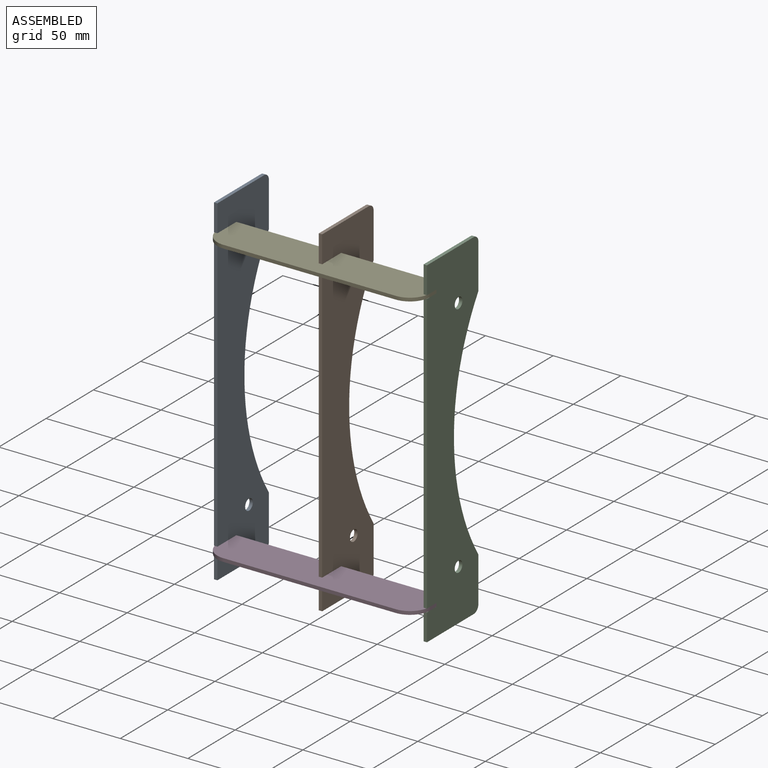
[diagram: assembled view]
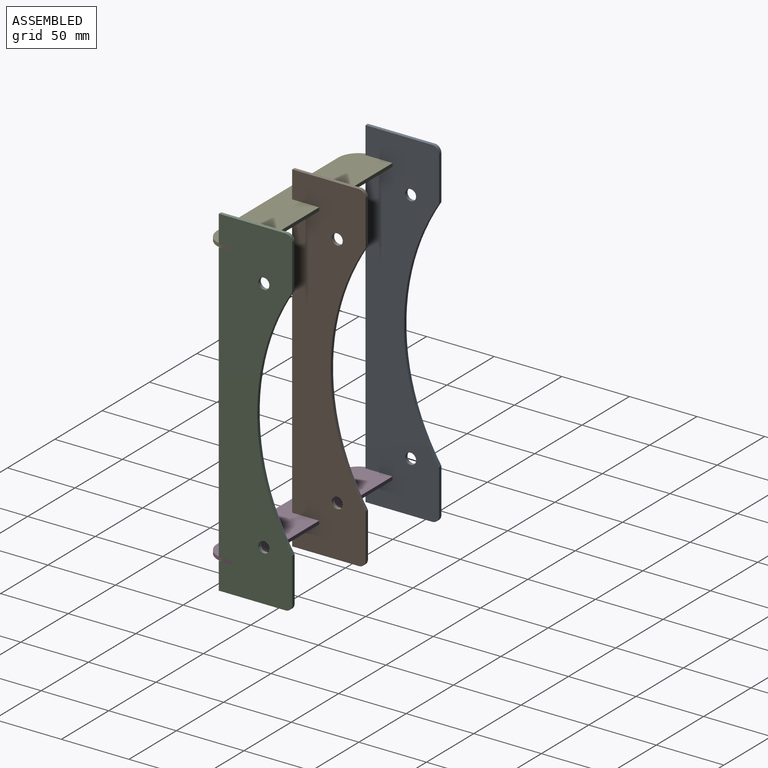
[diagram: assembled view, second angle]
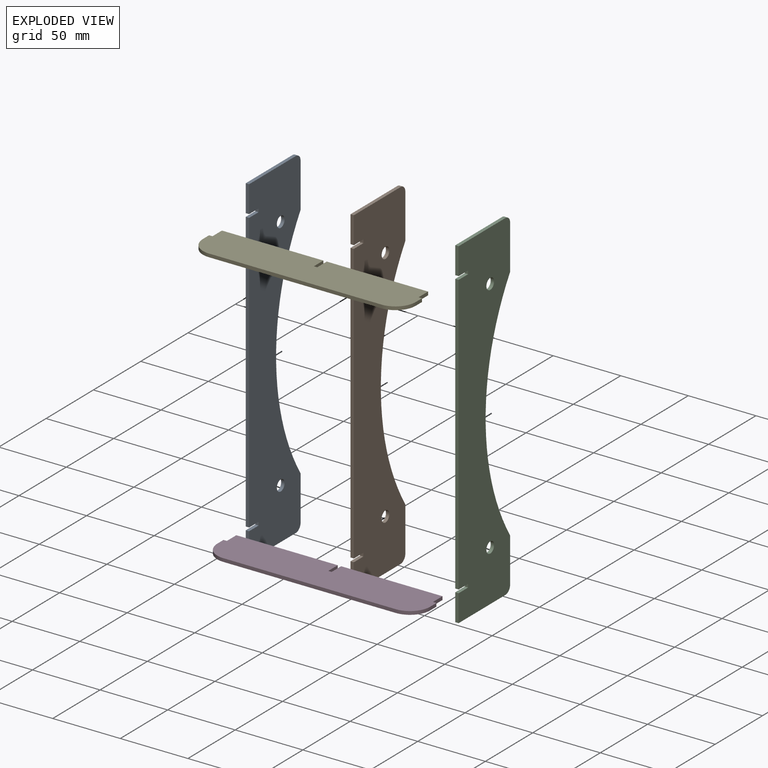
[diagram: exploded view]
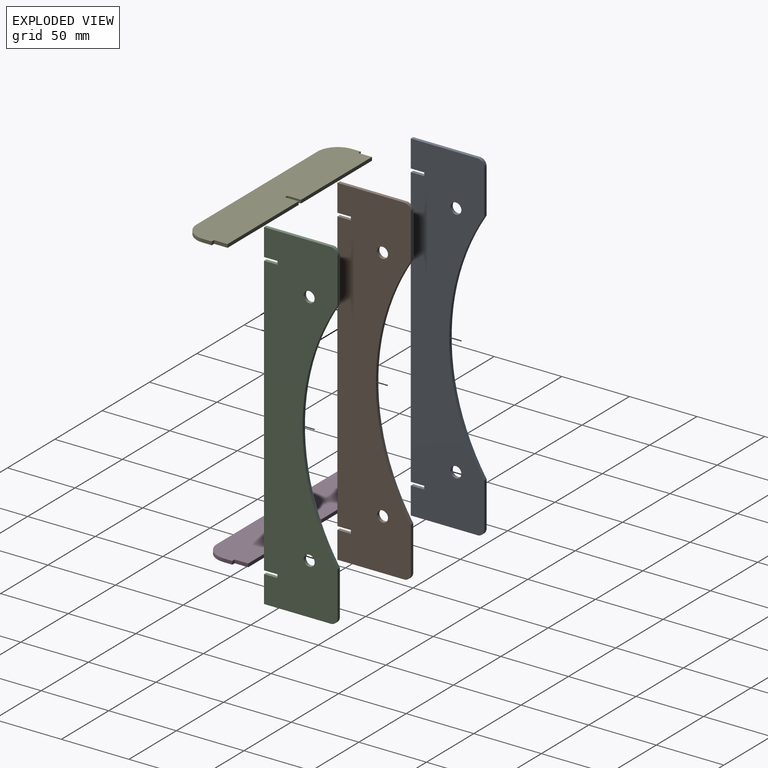
[diagram: exploded view, second angle]
FCSTD DOCUMENT  (FreeCAD 1.0R39319 (Git))
Label: Lasercut
License: All rights reserved
LicenseURL: https://en.wikipedia.org/wiki/All_rights_reserved
objects: App::FeaturePython×7, App::Link×5, Sketcher::SketchObject×3, PartDesign::Body×3, Measure::MeasureDistance×3, PartDesign::Pad×2, Part::Feature×1, PartDesign::FeatureBase×1, Spreadsheet::Sheet×1, PartDesign::SubShapeBinder×1, Assembly::JointGroup×1, Assembly::AssemblyObject×1, App::DocumentObjectGroup×1
note: 19 computed .brp shape members not serialized (recipe doc carries the construction recipe); baked Part::Feature solids carry a one-line shape summary decoded from their .brp

FEATURE [Part::Feature] Part__Feature  label="SpoolHolder"
  shape: bbox 163 x 40.87 x 240 mm, 451 faces (baked)
FEATURE [PartDesign::FeatureBase] BaseFeature
  BaseFeature = -> Part__Feature
  Suppressed = false
FEATURE [Sketcher::SketchObject] Sketch
  ArcFitTolerance = 1e-06
  AttachmentSupport = -> [YZ_Plane]
  ExternalGeometry = -> [BaseFeature]
  FullyConstrained = true
  MakeInternals = false
  MapMode = 5
  Placement = pos=(0,0,0) rot=(0.57735,0.57735,0.57735;2.0944rad)
FEATURE [PartDesign::Body] Body001
  AllowCompound = false
  BaseFeature = -> Part__Feature
  Group = -> [BaseFeature,Sketch]
  Origin = -> Origin001
  Tip = -> BaseFeature
FEATURE [Sketcher::SketchObject] Sketch001
  ArcFitTolerance = 1e-06
  AttachmentSupport = -> [YZ_Plane]
  ExternalGeometry = -> [BaseFeature]
  FullyConstrained = true
  MakeInternals = false
  MapMode = 5
  Placement = pos=(0,0,0) rot=(0.57735,0.57735,0.57735;2.0944rad)
  expr: Constraints[52] = <<config>>.dist
  expr: Constraints[55] = <<config>>.depth + <<config>>.clearance
  expr: Constraints[56] = <<config>>.thickness + <<config>>.clearance
  sketch-geometry (34):
    g0: Circle CenterX=44.8725 CenterY=88.1275 CenterZ=0 NormalX=0 NormalY=0 NormalZ=1 AngleXU=0 Radius=4.05
    g1: Circle CenterX=44.8725 CenterY=-88.1275 CenterZ=0 NormalX=0 NormalY=0 NormalZ=1 AngleXU=0 Radius=4.05
    g2: LineSegment [constr] StartX=50.8725 StartY=-126 StartZ=0 EndX=50.8725 EndY=120 EndZ=0
    g3: LineSegment [constr] StartX=50.8725 StartY=120 StartZ=0 EndX=11.5 EndY=120 EndZ=0
    g4: LineSegment StartX=50.8725 StartY=-126 StartZ=0 EndX=11.5 EndY=-126 EndZ=0
    g5: LineSegment [constr] StartX=50.8725 StartY=120 StartZ=0 EndX=65.8725 EndY=120 EndZ=0
    g6: LineSegment StartX=60.8725 StartY=-126 StartZ=0 EndX=50.8725 EndY=-126 EndZ=0
    g7: LineSegment StartX=65.8725 StartY=120 StartZ=0 EndX=65.8725 EndY=88.1275 EndZ=0
    g8: LineSegment [constr] StartX=65.8725 StartY=88.1275 StartZ=0 EndX=65.8725 EndY=-88.1275 EndZ=0
    g9: ArcOfCircle CenterX=203.027 CenterY=2.02e-14 CenterZ=0 NormalX=0 NormalY=0 NormalZ=1 AngleXU=0 Radius=163.027 StartAngle=2.57048 EndAngle=3.71271
    g10: LineSegment StartX=65.8725 StartY=-88.1275 StartZ=0 EndX=65.8725 EndY=-120 EndZ=0
    g11: LineSegment StartX=65.8725 StartY=-120 StartZ=0 EndX=65.8725 EndY=-121 EndZ=0
    g12: LineSegment [constr] StartX=11.5 StartY=-120 StartZ=0 EndX=65.8725 EndY=-120 EndZ=0
    g13: LineSegment [constr] StartX=65.8725 StartY=88.1275 StartZ=0 EndX=44.8725 EndY=88.1275 EndZ=0
    g14: GeomPoint [constr] X=40 Y=0 Z=0
    g15: GeomPoint [constr] X=65.8725 Y=120 Z=0
    g16: ArcOfCircle CenterX=60.8725 CenterY=-121 CenterZ=0 NormalX=0 NormalY=0 NormalZ=1 AngleXU=0 Radius=5 StartAngle=4.71239 EndAngle=6.28319
    g17: GeomPoint [constr] X=65.8725 Y=-126 Z=0
    g18: LineSegment StartX=11.5 StartY=106 StartZ=0 EndX=21.5 EndY=106 EndZ=0
    g19: LineSegment StartX=21.5 StartY=106 StartZ=0 EndX=21.5 EndY=103.5 EndZ=0
    g20: LineSegment StartX=21.5 StartY=103.5 StartZ=0 EndX=11.5 EndY=103.5 EndZ=0
    g21: LineSegment StartX=11.5 StartY=-103.5 StartZ=0 EndX=21.5 EndY=-103.5 EndZ=0
    g22: LineSegment StartX=21.5 StartY=-103.5 StartZ=0 EndX=21.5 EndY=-106 EndZ=0
    g23: LineSegment StartX=21.5 StartY=-106 StartZ=0 EndX=11.5 EndY=-106 EndZ=0
    g24: LineSegment StartX=11.5 StartY=120 StartZ=0 EndX=11.5 EndY=106 EndZ=0
    g25: LineSegment [constr] StartX=11.5 StartY=106 StartZ=0 EndX=11.5 EndY=103.5 EndZ=0
    g26: LineSegment StartX=11.5 StartY=103.5 StartZ=0 EndX=11.5 EndY=-103.5 EndZ=0
    g27: LineSegment [constr] StartX=11.5 StartY=-103.5 StartZ=0 EndX=11.5 EndY=-106 EndZ=0
    g28: LineSegment StartX=11.5 StartY=-106 StartZ=0 EndX=11.5 EndY=-126 EndZ=0
    g29: LineSegment StartX=11.5 StartY=120 StartZ=0 EndX=11.5 EndY=126 EndZ=0
    g30: LineSegment StartX=11.5 StartY=126 StartZ=0 EndX=60.8725 EndY=126 EndZ=0
    g31: LineSegment StartX=65.8725 StartY=121 StartZ=0 EndX=65.8725 EndY=120 EndZ=0
    g32: ArcOfCircle CenterX=60.8725 CenterY=121 CenterZ=0 NormalX=0 NormalY=0 NormalZ=1 AngleXU=0 Radius=5 StartAngle=8e-16 EndAngle=1.5708
    g33: GeomPoint [constr] X=65.8725 Y=126 Z=0
  constraints (88):
    c: Coincident(g0,g-3)
    c: PointOnObject(g-3,g0)
    c: Coincident(g1,g-4)
    c: PointOnObject(g-4,g1)
    c: Coincident(g2,g3)
    c: Coincident(g3,g24)
    c: Vertical(g2)
    c: Horizontal(g3)
    c: Coincident(g24,g-7)
    c: Horizontal(g4)
    c: PointOnObject(g-5,g2)
    c: Coincident(g2,g4)
    c: Coincident(g28,g4)
    c: DistanceY(g28,g-8) = 6
    c: Coincident(g2,g5)
    c: Horizontal(g5)
    c: Coincident(g6,g2)
    c: Horizontal(g6)
    c: Coincident(g7,g8)
    c: Vertical(g7)
    c: Coincident(g8,g10)
    c: Vertical(g8)
    c: Coincident(g9,g7)
    c: Coincident(g9,g8)
    c: Coincident(g10,g11)
    c: Vertical(g10)
    c: Vertical(g11)
    c: Coincident(g12,g-8)
    c: Coincident(g12,g10)
    c: Horizontal(g12)
    c: DistanceX(g5,g15) = 15
    c: Coincident(g13,g7)
    c: Coincident(g13,g0)
    c: Horizontal(g13)
    c: PointOnObject(g14,g-1)
    c: PointOnObject(g14,g9)
    c: DistanceX(g-1,g14) = 40
    c: PointOnObject(g17,g11)
    c: PointOnObject(g17,g6)
    c: Tangent(g11,g16) = 1.5708
    c: Tangent(g6,g16) = 1.5708
    c: Equal(g10,g7)
    c: Horizontal(g18)
    c: Coincident(g19,g18)
    c: Vertical(g19)
    c: Horizontal(g20)
    c: Coincident(g20,g19)
    c: Horizontal(g21)
    c: Coincident(g21,g22)
    c: Vertical(g22)
    c: Coincident(g22,g23)
    c: Horizontal(g23)
    c: DistanceY(g28,g23) = 20
    c: Equal(g19,g22)
    c: Equal(g21,g20)
    c: DistanceX(g18,g18) = 10
    c: DistanceY(g19,g19) = 2.5
    c: Coincident(g24,g25)
    c: Vertical(g24)
    c: PointOnObject(g18,g24)
    c: PointOnObject(g20,g24)
    c: Coincident(g25,g26)
    c: Vertical(g25)
    c: Coincident(g26,g27)
    c: Vertical(g26)
    c: Coincident(g27,g28)
    c: Vertical(g27)
    c: Vertical(g28)
    c: PointOnObject(g23,g27)
    c: PointOnObject(g26,g21)
    c: PointOnObject(g27,g23)
    c: PointOnObject(g25,g20)
    c: PointOnObject(g24,g18)
    c: Coincident(g5,g15)
    c: Coincident(g7,g5)
    c: Radius(g16) = 5
    c: Coincident(g3,g29)
    c: Coincident(g29,g30)
    c: Horizontal(g30)
    c: Coincident(g31,g5)
    c: Vertical(g31)
    c: PointOnObject(g33,g30)
    c: PointOnObject(g33,g31)
    c: Tangent(g30,g32) = 1.5708
    c: Tangent(g31,g32) = 1.5708
    c: Equal(g32,g16)
    c: Symmetric(g29,g4,g-1)
    c: Symmetric(g21,g20,g-1)
FEATURE [Spreadsheet::Sheet] Spreadsheet  label="config"
  cells = A1='thickness; B1(thickness)==2.5 mm; A2='clearance; B2(clearance)==0 mm; A3='joint depth; B3(depth)==10 mm; A4='joint distance; B4(dist)==20 mm; A5='roller length; B5(roller_length)==74 mm; A6='roller clearance; B6(roller_clearance)==0.5 mm
FEATURE [PartDesign::Pad] Pad
  Direction = (1,0,0)
  Length = 2.5
  Length2 = 10
  Midplane = true
  Placement = pos=(0,0,0) rot=(1,1,1;2.0944rad)
  Profile = -> Sketch001
  ReferenceAxis = -> Sketch001 [N_Axis]
  Refine = true
  Suppressed = false
  Type = 0
  expr: Length = <<config>>.thickness
FEATURE [PartDesign::Body] Body  label="GuardBody"
  AllowCompound = false
  Group = -> [Sketch001,Pad]
  Origin = -> Origin
  Tip = -> Pad
FEATURE [PartDesign::SubShapeBinder] Binder
  BindCopyOnChange = 0
  BindMode = 0
  ClaimChildren = false
  Context = -> Body002 [Binder.]
  Fuse = false
  MakeFace = true
  OffsetFill = false
  OffsetIntersection = false
  OffsetJoinType = 0
  OffsetOpenResult = false
  PartialLoad = false
  Refine = true
  Relative = true
  Support = -> [Body]
  _Version = 2
FEATURE [Sketcher::SketchObject] Sketch002
  ArcFitTolerance = 1e-06
  AttachmentSupport = -> [XY_Plane]
  ExternalGeometry = -> [Binder]
  FullyConstrained = true
  MakeInternals = false
  MapMode = 5
  expr: Constraints[19] = <<config>>.thickness
  expr: Constraints[20] = <<config>>.depth
  expr: Constraints[31] = <<config>>.depth
  expr: Constraints[35] = <<config>>.roller_length + 2 * <<config>>.roller_clearance
  expr: Constraints[9] = <<config>>.thickness
  sketch-geometry (18):
    g0: LineSegment StartX=-63.75 StartY=0 StartZ=0 EndX=63.75 EndY=1.8e-15 EndZ=0
    g1: LineSegment StartX=1.25 StartY=21.5 StartZ=0 EndX=1.25 EndY=31.5 EndZ=0
    g2: LineSegment [constr] StartX=1.25 StartY=31.5 StartZ=0 EndX=-1.25 EndY=31.5 EndZ=0
    g3: LineSegment StartX=-1.25 StartY=31.5 StartZ=0 EndX=-1.25 EndY=21.5 EndZ=0
    g4: LineSegment StartX=-1.25 StartY=21.5 StartZ=0 EndX=1.25 EndY=21.5 EndZ=0
    g5: GeomPoint [constr] X=0 Y=26.5 Z=0
    g6: LineSegment StartX=-78.75 StartY=21.5 StartZ=0 EndX=-78.75 EndY=15 EndZ=0
    g7: LineSegment StartX=78.75 StartY=15 StartZ=0 EndX=78.75 EndY=21.5 EndZ=0
    g8: LineSegment StartX=-78.75 StartY=21.5 StartZ=0 EndX=-76.25 EndY=21.5 EndZ=0
    g9: LineSegment StartX=-76.25 StartY=21.5 StartZ=0 EndX=-76.25 EndY=31.5 EndZ=0
    g10: LineSegment StartX=76.25 StartY=31.5 StartZ=0 EndX=76.25 EndY=21.5 EndZ=0
    g11: LineSegment StartX=76.25 StartY=21.5 StartZ=0 EndX=78.75 EndY=21.5 EndZ=0
    g12: LineSegment StartX=1.25 StartY=31.5 StartZ=0 EndX=76.25 EndY=31.5 EndZ=0
    g13: LineSegment StartX=-1.25 StartY=31.5 StartZ=0 EndX=-76.25 EndY=31.5 EndZ=0
    g14: ArcOfCircle CenterX=-63.75 CenterY=15 CenterZ=0 NormalX=0 NormalY=0 NormalZ=1 AngleXU=0 Radius=15 StartAngle=3.14159 EndAngle=4.71239
    g15: GeomPoint [constr] X=-78.75 Y=0 Z=0
    g16: ArcOfCircle CenterX=63.75 CenterY=15 CenterZ=0 NormalX=0 NormalY=0 NormalZ=1 AngleXU=0 Radius=15 StartAngle=4.71239 EndAngle=6.28319
    g17: GeomPoint [constr] X=78.75 Y=0 Z=0
  constraints (46):
    c: Coincident(g1,g2)
    c: Coincident(g2,g3)
    c: Coincident(g3,g4)
    c: Coincident(g4,g1)
    c: Vertical(g1)
    c: Vertical(g3)
    c: Horizontal(g2)
    c: Horizontal(g4)
    c: Symmetric(g3,g1,g5)
    c: DistanceX(g4,g4) = 2.5
    c: Vertical(g6)
    c: Vertical(g7)
    c: Horizontal(g8)
    c: Coincident(g8,g9)
    c: Vertical(g9)
    c: Vertical(g10)
    c: Coincident(g10,g11)
    c: Coincident(g11,g7)
    c: Horizontal(g11)
    c: DistanceX(g11,g11) = 2.5
    c: DistanceY(g10,g10) = 10
    c: Equal(g8,g11)
    c: Equal(g9,g10)
    c: Coincident(g12,g1)
    c: Coincident(g13,g2)
    c: Horizontal(g13)
    c: Coincident(g13,g9)
    c: Coincident(g8,g6)
    c: Coincident(g12,g10)
    c: Horizontal(g12)
    c: PointOnObject(g5,g-2)
    c: DistanceY(g1,g1) = 10
    c: Symmetric(g15,g17,g-2)
    c: PointOnObject(g15,g-1)
    c: PointOnObject(g-4,g4)
    c: DistanceX(g13,g13) = 75
    c: PointOnObject(g15,g6)
    c: PointOnObject(g15,g0)
    c: Tangent(g6,g14) = -1.5708
    c: Tangent(g0,g14) = -1.5708
    c: PointOnObject(g17,g0)
    c: PointOnObject(g17,g7)
    c: Tangent(g0,g16) = -1.5708
    c: Tangent(g7,g16) = -1.5708
    c: Equal(g16,g14)
    c: Radius(g14) = 15
FEATURE [PartDesign::Pad] Pad001
  Direction = (0,0,1)
  Length = 2.5
  Length2 = 10
  Midplane = true
  Profile = -> Sketch002
  ReferenceAxis = -> Sketch002 [N_Axis]
  Refine = true
  Suppressed = false
  Type = 0
  expr: Length = <<config>>.thickness
FEATURE [PartDesign::Body] Body002  label="JointBody"
  AllowCompound = false
  Group = -> [Sketch002,Binder,Pad001]
  Origin = -> Origin002
  Tip = -> Pad001
FEATURE [App::Link] JointBody  label="JointBody001"
  LinkedObject = -> Body002
FEATURE [App::FeaturePython] GroundedJoint  # Assembly grounded joint (typed FeaturePython)
  ObjectToGround = -> JointBody
FEATURE [App::Link] JointBody001  label="JointBody002"
  LinkPlacement = pos=(-1.19e-14,-9.55e-14,209.5) rot=(0,0,1;0rad)
  LinkedObject = -> Body002
  Placement = pos=(-1.19e-14,-9.55e-14,209.5) rot=(0,0,1;0rad)
FEATURE [App::Link] GuardBody  label="GuardBody001"
  LinkPlacement = pos=(-77.5,-5.58e-14,104.75) rot=(0,0,1;0rad)
  LinkedObject = -> Body
  Placement = pos=(-77.5,-5.58e-14,104.75) rot=(0,0,1;0rad)
FEATURE [App::Link] GuardBody001  label="GuardBody002"
  LinkPlacement = pos=(6.6e-15,-4.7e-14,104.75) rot=(0,0,1;0rad)
  LinkedObject = -> Body
  Placement = pos=(6.6e-15,-4.7e-14,104.75) rot=(0,0,1;0rad)
FEATURE [App::Link] GuardBody002  label="GuardBody003"
  LinkPlacement = pos=(77.5,-3.7e-14,104.75) rot=(0,0,1;0rad)
  LinkedObject = -> Body
  Placement = pos=(77.5,-3.7e-14,104.75) rot=(0,0,1;0rad)
FEATURE [App::FeaturePython] Joint  label="Fixed"  # Assembly joint (typed FeaturePython)
  Activated = true
  AngleMax = 0
  AngleMin = 0
  Detach1 = false
  Detach2 = false
  Distance = 0
  Distance2 = 0
  EnableAngleMax = false
  EnableAngleMin = false
  EnableLengthMax = false
  EnableLengthMin = false
  JointType = 0 (Fixed)
  LengthMax = 0
  LengthMin = 0
  Offset2 = pos=(0,0,0) rot=(0,0,-1;1.5708rad)
  Placement1 = pos=(-77.5,21.5,0) rot=(-1,0,0;1.5708rad)
  Placement2 = pos=(2.84e-14,21.5,-104.75) rot=(-1,0,0;1.5708rad)
  Reference1 = -> Assembly [JointBody.Face14,JointBody.Face14]
  Reference2 = -> Assembly [GuardBody.Face6,GuardBody.Face6]
FEATURE [App::FeaturePython] Joint001  label="Fixed001"  # Assembly joint (typed FeaturePython)
  Activated = true
  AngleMax = 0
  AngleMin = 0
  Detach1 = false
  Detach2 = false
  Distance = 0
  Distance2 = 0
  EnableAngleMax = false
  EnableAngleMin = false
  EnableLengthMax = false
  EnableLengthMin = false
  JointType = 0 (Fixed)
  LengthMax = 0
  LengthMin = 0
  Offset2 = pos=(0,0,0) rot=(0,0,-1;1.5708rad)
  Placement1 = pos=(9e-16,21.5,0) rot=(-1,0,0;1.5708rad)
  Placement2 = pos=(3.46e-14,21.5,-104.75) rot=(-1,0,0;1.5708rad)
  Reference1 = -> Assembly [JointBody.Face10,JointBody.Face10]
  Reference2 = -> Assembly [GuardBody001.Face6,GuardBody001.Face6]
FEATURE [App::FeaturePython] Joint002  label="Fixed002"  # Assembly joint (typed FeaturePython)
  Activated = true
  AngleMax = 0
  AngleMin = 0
  Detach1 = false
  Detach2 = false
  Distance = 0
  Distance2 = 0
  EnableAngleMax = false
  EnableAngleMin = false
  EnableLengthMax = false
  EnableLengthMin = false
  JointType = 0 (Fixed)
  LengthMax = 0
  LengthMin = 0
  Offset2 = pos=(0,0,0) rot=(0,0,1;1.5708rad)
  Placement1 = pos=(2.84e-14,21.5,-104.75) rot=(-0.57735,0.57735,0.57735;2.0944rad)
  Placement2 = pos=(77.5,21.5,0) rot=(-0.57735,0.57735,0.57735;2.0944rad)
  Reference1 = -> Assembly [GuardBody002.Face6,GuardBody002.Face6]
  Reference2 = -> Assembly [JointBody.Face6,JointBody.Face6]
FEATURE [App::FeaturePython] Joint003  label="Fixed003"  # Assembly joint (typed FeaturePython)
  Activated = true
  AngleMax = 0
  AngleMin = 0
  Detach1 = false
  Detach2 = false
  Distance = 0
  Distance2 = 0
  EnableAngleMax = false
  EnableAngleMin = false
  EnableLengthMax = false
  EnableLengthMin = false
  JointType = 0 (Fixed)
  LengthMax = 0
  LengthMin = 0
  Placement1 = pos=(-2.84e-14,21.5,104.75) rot=(-0.57735,0.57735,0.57735;2.0944rad)
  Placement2 = pos=(77.5,21.5,0) rot=(-1,0,0;1.5708rad)
  Reference1 = -> Assembly [GuardBody002.Face10,GuardBody002.Face10]
  Reference2 = -> Assembly [JointBody001.Face6,JointBody001.Face6]
FEATURE [App::FeaturePython] Joint004  label="Fixed004"  # Assembly joint (typed FeaturePython)
  Activated = true
  AngleMax = 0
  AngleMin = 0
  Detach1 = false
  Detach2 = false
  Distance = 0
  Distance2 = 0
  EnableAngleMax = false
  EnableAngleMin = false
  EnableLengthMax = false
  EnableLengthMin = false
  JointType = 0 (Fixed)
  LengthMax = 0
  LengthMin = 0
  Placement1 = pos=(-3.51e-14,21.5,104.75) rot=(-0.57735,0.57735,0.57735;2.0944rad)
  Placement2 = pos=(9e-16,21.5,0) rot=(-1,0,0;1.5708rad)
  Reference1 = -> Assembly [GuardBody001.Face10,GuardBody001.Face10]
  Reference2 = -> Assembly [JointBody001.Face10,JointBody001.Face10]
FEATURE [App::FeaturePython] Joint005  label="Fixed005"  # Assembly joint (typed FeaturePython)
  Activated = true
  AngleMax = 0
  AngleMin = 0
  Detach1 = false
  Detach2 = false
  Distance = 0
  Distance2 = 0
  EnableAngleMax = false
  EnableAngleMin = false
  EnableLengthMax = false
  EnableLengthMin = false
  JointType = 0 (Fixed)
  LengthMax = 0
  LengthMin = 0
  Placement1 = pos=(-77.5,21.5,0) rot=(-1,0,0;1.5708rad)
  Placement2 = pos=(-2.84e-14,21.5,104.75) rot=(-0.57735,0.57735,0.57735;2.0944rad)
  Reference1 = -> Assembly [JointBody001.Face14,JointBody001.Face14]
  Reference2 = -> Assembly [GuardBody.Face10,GuardBody.Face10]
FEATURE [Assembly::JointGroup] Joints
  Group = -> [GroundedJoint,Joint,Joint001,Joint002,Joint003,Joint004,Joint005]
FEATURE [Assembly::AssemblyObject] Assembly
  Group = -> [Joints,JointBody,GroundedJoint,JointBody001,GuardBody,GuardBody001,GuardBody002,Joint,Joint001,Joint002,Joint003,Joint004,Joint005]
  Origin = -> Origin003
  Type = Assembly
FEATURE [Measure::MeasureDistance] Distance  label="Distance: 252.00 mm"
  Distance = 252
  DistanceX = 2.8e-14
  DistanceY = 2.84e-14
  DistanceZ = 252
  Element1 = -> Assembly [GuardBody001.Pad.Edge44]
  Element2 = -> Assembly [GuardBody001.Pad.Edge53]
  Position1 = (1.25,11.5,230.75)
  Position2 = (1.25,11.5,-21.25)
FEATURE [Measure::MeasureDistance] Distance001  label="Distance001: 157.50 mm"
  Distance = 157.5
  DistanceX = 157.5
  DistanceY = 1.78e-14
  DistanceZ = 0
  Element1 = -> Assembly [GuardBody002.Pad.Edge44]
  Element2 = -> Assembly [GuardBody.Pad.Edge18]
  Position1 = (78.75,11.5,230.75)
  Position2 = (-78.75,11.5,230.75)
FEATURE [Measure::MeasureDistance] Distance002  label="Distance002: 31.50 mm"
  Distance = 31.5
  DistanceX = 3.3e-15
  DistanceY = 31.5
  DistanceZ = 0
  Element1 = -> Assembly [JointBody001.Pad001.Edge25]
  Element2 = -> Assembly [JointBody001.Pad001.Edge10]
  Position1 = (1.25,31.5,210.75)
  Position2 = (1.25,-9.48e-14,210.75)
FEATURE [App::DocumentObjectGroup] Measurements
  Group = -> [Distance,Distance001,Distance002]
